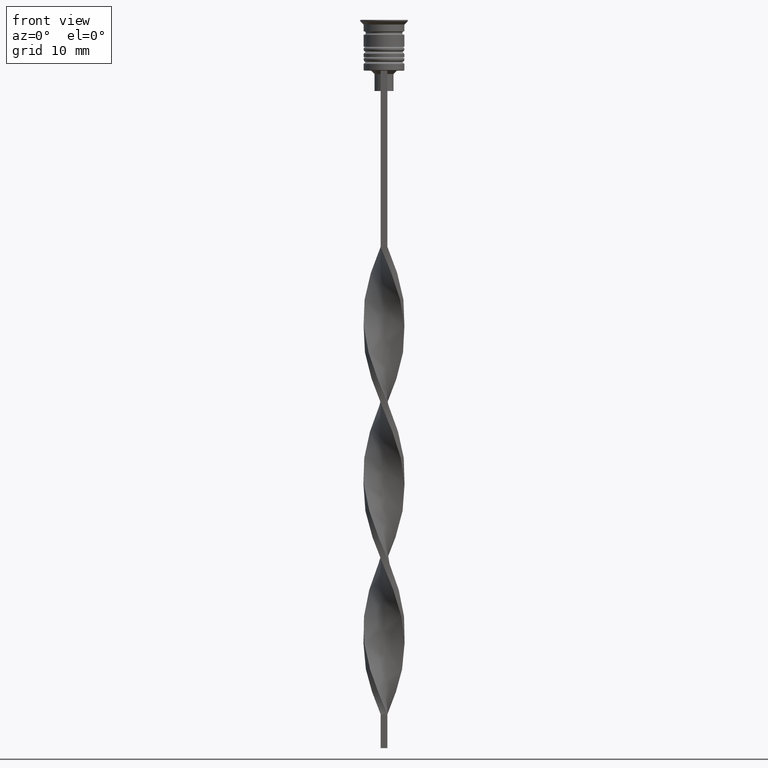
[diagram: clean part render]
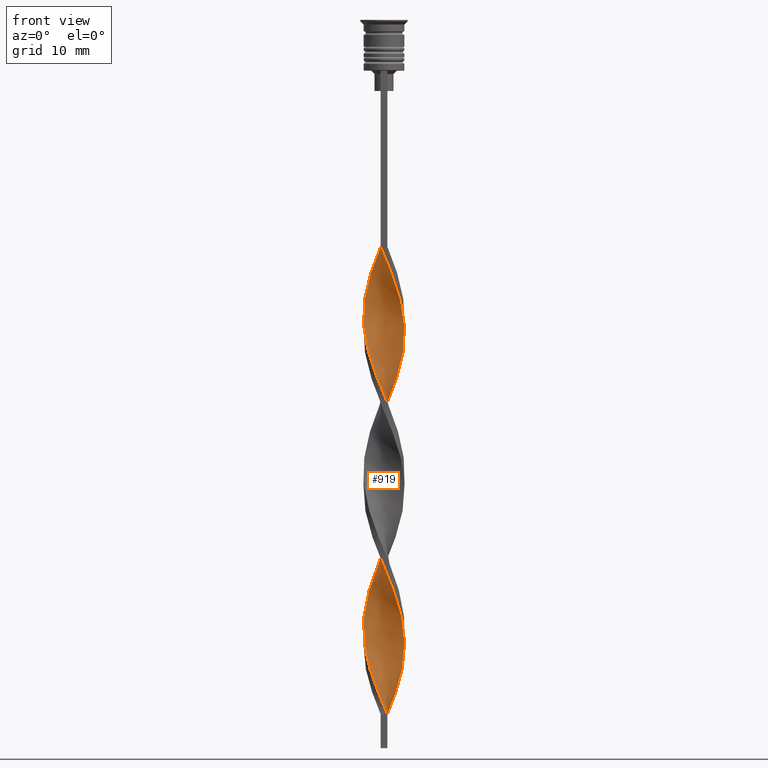
[diagram: same view with one face highlighted and labeled with its STEP entity id]
A machine part, front view. The second image highlights one B-rep face of the part: STEP entity #919.
In plain terms, the highlighted face is a freeform B-spline surface patch.
Its self-contained STEP definition (entity closure, byte-faithful):
#2 = CARTESIAN_POINT ( 'NONE',  ( -1.836897528957912584, -2.424006490937744118, -75.96153846153846700 ) ) ;
#5 = CARTESIAN_POINT ( 'NONE',  ( -0.1357340503332168102, 3.060710991611130805, -78.61538461538461320 ) ) ;
#19 = CARTESIAN_POINT ( 'NONE',  ( 1.928028413296781762, -2.380983398537113604, -85.69230769230770761 ) ) ;
#23 = CARTESIAN_POINT ( 'NONE',  ( -0.9514415033047011194, -2.888729662981513790, -52.96153846153845990 ) ) ;
#39 = CARTESIAN_POINT ( 'NONE',  ( -1.928028413296780652, 2.380983398537114049, -62.69230769230770051 ) ) ;
#42 = CARTESIAN_POINT ( 'NONE',  ( -0.2324760841496483210, -3.032483284421934933, -54.73076923076923350 ) ) ;
#55 = CARTESIAN_POINT ( 'NONE',  ( -0.5000000000000001110, 3.000000000000000000, -33.50000000000000000 ) ) ;
#58 = CARTESIAN_POINT ( 'NONE',  ( 2.363623348807935898, -1.913970915392906313, -61.80769230769231370 ) ) ;
#68 = CARTESIAN_POINT ( 'NONE',  ( 2.363623348807935898, -1.913970915392906313, -61.80769230769231370 ) ) ;
#81 = CARTESIAN_POINT ( 'NONE',  ( 0.2324760841496471830, -3.032483284421934933, -35.26923076923077360 ) ) ;
#88 = CARTESIAN_POINT ( 'NONE',  ( 2.131225204431204556, 2.200966749995605820, -98.07692307692308020 ) ) ;
#93 = CARTESIAN_POINT ( 'NONE',  ( 0.4999999999999997780, -3.000000000000000000, -102.5000000000000142 ) ) ;
#104 = CARTESIAN_POINT ( 'NONE',  ( 2.813682533735953673, 1.212256617197149833, -69.76923076923077360 ) ) ;
#113 = CARTESIAN_POINT ( 'NONE',  ( 2.596021493184669016, 1.626975080790204364, -50.30769230769231370 ) ) ;
#119 = CARTESIAN_POINT ( 'NONE',  ( -0.8642659496667818297, 2.939289008388869640, -34.38461538461538680 ) ) ;
#143 = CARTESIAN_POINT ( 'NONE',  ( -2.131225204431204112, 2.200966749995606264, -83.92307692307693401 ) ) ;
#151 = CARTESIAN_POINT ( 'NONE',  ( 2.441810035334000428, -1.850388947743478063, -87.46153846153849543 ) ) ;
#155 = CARTESIAN_POINT ( 'NONE',  ( -2.363623348807935898, 1.913970915392905869, -84.80769230769232081 ) ) ;
#163 = CARTESIAN_POINT ( 'NONE',  ( -2.596021493184669904, -1.626975080790202810, -73.30769230769232081 ) ) ;
#166 = CARTESIAN_POINT ( 'NONE',  ( -0.5000000000000001110, 3.000000000000000000, -79.50000000000001421 ) ) ;
#174 = CARTESIAN_POINT ( 'NONE',  ( -2.441810035333999540, 1.850388947743479395, -64.46153846153845279 ) ) ;
#181 = CARTESIAN_POINT ( 'NONE',  ( -1.836897528957910586, 2.424006490937745451, -83.03846153846154721 ) ) ;
#193 = CARTESIAN_POINT ( 'NONE',  ( 2.813682533735953228, -1.212256617197151165, -89.23076923076924061 ) ) ;
#197 = CARTESIAN_POINT ( 'NONE',  ( 1.928028413296783983, 2.380983398537111828, -73.30769230769232081 ) ) ;
#209 = CARTESIAN_POINT ( 'NONE',  ( 1.542569853484617948, 2.647046231879884193, -53.84615384615384670 ) ) ;
#233 = CARTESIAN_POINT ( 'NONE',  ( 2.596021493184669016, 1.626975080790204142, -50.30769230769232081 ) ) ;
#239 = CARTESIAN_POINT ( 'NONE',  ( 0.4999999999999997780, -3.000000000000000000, -56.50000000000000711 ) ) ;
#256 = CARTESIAN_POINT ( 'NONE',  ( 0.2324760841496471830, -3.032483284421934933, -81.26923076923077360 ) ) ;
#260 = CARTESIAN_POINT ( 'NONE',  ( 0.9514415033047027848, 2.888729662981513346, -75.96153846153846700 ) ) ;
#273 = CARTESIAN_POINT ( 'NONE',  ( 2.917858282166500228, -0.8579644778149968509, -44.11538461538462030 ) ) ;
#277 = CARTESIAN_POINT ( 'NONE',  ( 1.542569853484615949, -2.647046231879885525, -59.15384615384616041 ) ) ;
#289 = CARTESIAN_POINT ( 'NONE',  ( 2.982351171577512616, 0.5963065397848988924, -47.65384615384616041 ) ) ;
#293 = CARTESIAN_POINT ( 'NONE',  ( -2.813682533735953228, -1.212256617197150943, -46.76923076923077360 ) ) ;
#310 = CARTESIAN_POINT ( 'NONE',  ( 3.038394962421823386, -0.1347443962830584541, -45.88461538461538680 ) ) ;
#313 = CARTESIAN_POINT ( 'NONE',  ( -2.441810035334000428, -1.850388947743477619, -48.53846153846154721 ) ) ;
#328 = CARTESIAN_POINT ( 'NONE',  ( 2.909946448908425687, 0.9584295337030729334, -94.53846153846153300 ) ) ;
#332 = CARTESIAN_POINT ( 'NONE',  ( -2.184919224315391428, -2.115686173140295168, -95.42307692307693401 ) ) ;
#344 = CARTESIAN_POINT ( 'NONE',  ( 2.441810035334001761, 1.850388947743476509, -71.53846153846154721 ) ) ;
#345 = DIRECTION ( 'NONE',  ( 0.000000000000000000, 1.000000000000000000, 0.000000000000000000 ) ) ;
#356 = CARTESIAN_POINT ( 'NONE',  ( 2.982351171577512616, 0.5963065397848988924, -47.65384615384616041 ) ) ;
#365 = CARTESIAN_POINT ( 'NONE',  ( 2.982351171577512616, -0.5963065397849001137, -65.34615384615385381 ) ) ;
#376 = CARTESIAN_POINT ( 'NONE',  ( 1.302196787976888093, -2.773203748730288520, -37.92307692307692690 ) ) ;
#381 = CARTESIAN_POINT ( 'NONE',  ( 2.627746284534976606, -1.531322782470315058, -88.34615384615385381 ) ) ;
#383 = CARTESIAN_POINT ( 'NONE',  ( -3.038394962421823831, -0.1347443962830574271, -90.11538461538462741 ) ) ;
#391 = CARTESIAN_POINT ( 'NONE',  ( 1.615112600636834594, -2.577093573633701062, -38.80769230769230660 ) ) ;
#395 = CARTESIAN_POINT ( 'NONE',  ( 1.542569853484615949, -2.647046231879885525, -59.15384615384616041 ) ) ;
#409 = CARTESIAN_POINT ( 'NONE',  ( 2.184919224315390984, -2.115686173140296056, -40.57692307692308020 ) ) ;
#414 = CARTESIAN_POINT ( 'NONE',  ( -2.131225204431204112, 2.200966749995606264, -83.92307692307691980 ) ) ;
#426 = CARTESIAN_POINT ( 'NONE',  ( 2.596021493184669016, 1.626975080790204364, -96.30769230769232081 ) ) ;
#430 = CARTESIAN_POINT ( 'NONE',  ( 0.6006862186325140351, 3.004255577232739949, -76.84615384615386802 ) ) ;
#438 = CARTESIAN_POINT ( 'NONE',  ( -1.203417901575701832, -2.793167620134376250, -77.73076923076924061 ) ) ;
#441 = CARTESIAN_POINT ( 'NONE',  ( -2.917858282166500672, -0.8579644778149958517, -91.88461538461540101 ) ) ;
#454 = CARTESIAN_POINT ( 'NONE',  ( -1.928028413296780652, 2.380983398537114493, -62.69230769230770051 ) ) ;
#475 = CARTESIAN_POINT ( 'NONE',  ( 0.5000000000000004441, 3.000000000000000000, -102.5000000000000142 ) ) ;
#488 = CARTESIAN_POINT ( 'NONE',  ( -2.131225204431204556, -2.200966749995605820, -75.07692307692308020 ) ) ;
#498 = CARTESIAN_POINT ( 'NONE',  ( -0.9514415033047003423, 2.888729662981513790, -60.03846153846154010 ) ) ;
#503 = CARTESIAN_POINT ( 'NONE',  ( 3.022034030597048559, 0.5036723384328409825, -68.00000000000000000 ) ) ;
#519 = CARTESIAN_POINT ( 'NONE',  ( -2.363623348807936786, -1.913970915392904315, -74.19230769230769340 ) ) ;
#523 = CARTESIAN_POINT ( 'NONE',  ( 1.928028413296783983, 2.380983398537111828, -73.30769230769232081 ) ) ;
#542 = CARTESIAN_POINT ( 'NONE',  ( -1.615112600636835705, -2.577093573633700174, -51.19230769230769340 ) ) ;
#555 = CARTESIAN_POINT ( 'NONE',  ( -0.6006862186325113706, 3.004255577232740393, -59.15384615384616041 ) ) ;
#560 = CARTESIAN_POINT ( 'NONE',  ( -1.542569853484617060, 2.647046231879885081, -36.15384615384615330 ) ) ;
#561 = ORIENTED_EDGE ( 'NONE', *, *, #603, .T. ) ;
#572 = CARTESIAN_POINT ( 'NONE',  ( 3.022034030597048559, -0.5036723384328417596, -45.00000000000000711 ) ) ;
#578 = CARTESIAN_POINT ( 'NONE',  ( 1.836897528957910586, -2.424006490937745451, -60.03846153846154010 ) ) ;
#594 = CARTESIAN_POINT ( 'NONE',  ( -2.441810035334000428, -1.850388947743477397, -48.53846153846154010 ) ) ;
#603 = EDGE_CURVE ( 'NONE', #2707, #821, #1584, .T. ) ;
#608 = CARTESIAN_POINT ( 'NONE',  ( 0.8642659496667812746, -2.939289008388869640, -57.38461538461538680 ) ) ;
#612 = CARTESIAN_POINT ( 'NONE',  ( -0.8642659496667818297, 2.939289008388869640, -80.38461538461538680 ) ) ;
#620 = CARTESIAN_POINT ( 'NONE',  ( 3.038394962421823386, -0.1347443962830584541, -45.88461538461538680 ) ) ;
#627 = CARTESIAN_POINT ( 'NONE',  ( 0.4999999999999997780, -3.000000000000000000, -56.50000000000000711 ) ) ;
#646 = CARTESIAN_POINT ( 'NONE',  ( -2.752983971046547129, 1.292702307246639482, -40.57692307692308020 ) ) ;
#651 = CARTESIAN_POINT ( 'NONE',  ( 0.5000000000000004441, 3.000000000000000000, -102.5000000000000142 ) ) ;
#659 = EDGE_CURVE ( 'NONE', #931, #821, #666, .T. ) ;
#661 = CARTESIAN_POINT ( 'NONE',  ( 3.022034030597048559, -0.5036723384328417596, -91.00000000000001421 ) ) ;
#666 = B_SPLINE_CURVE_WITH_KNOTS ( 'NONE', 3,
 ( #651, #3301, #1165, #93 ),
 .UNSPECIFIED., .F., .F.,
 ( 4, 4 ),
 ( 0.000000000000000000, 1.000000000000000000 ),
 .UNSPECIFIED. ) ;
#672 = CARTESIAN_POINT ( 'NONE',  ( -0.1357340503332185033, -3.060710991611130360, -34.38461538461538680 ) ) ;
#684 = CARTESIAN_POINT ( 'NONE',  ( -1.836897528957912584, -2.424006490937744118, -75.96153846153846700 ) ) ;
#717 = CARTESIAN_POINT ( 'NONE',  ( 1.615112600636834594, -2.577093573633701062, -84.80769230769232081 ) ) ;
#732 = CARTESIAN_POINT ( 'NONE',  ( 2.909946448908426131, 0.9584295337030729334, -94.53846153846154721 ) ) ;
#737 = CARTESIAN_POINT ( 'NONE',  ( -2.596021493184668572, 1.626975080790205475, -85.69230769230770761 ) ) ;
#750 = CARTESIAN_POINT ( 'NONE',  ( -1.615112600636834150, 2.577093573633701062, -61.80769230769231370 ) ) ;
#758 = CARTESIAN_POINT ( 'NONE',  ( -2.131225204431204556, -2.200966749995605820, -75.07692307692308020 ) ) ;
#776 = CARTESIAN_POINT ( 'NONE',  ( -2.441810035333999540, 1.850388947743479173, -64.46153846153845279 ) ) ;
#779 = CARTESIAN_POINT ( 'NONE',  ( 0.8642659496667811636, -2.939289008388869640, -57.38461538461538680 ) ) ;
#795 = CARTESIAN_POINT ( 'NONE',  ( -1.203417901575701832, -2.793167620134376250, -77.73076923076924061 ) ) ;
#800 = CARTESIAN_POINT ( 'NONE',  ( -2.131225204431204112, 2.200966749995606264, -37.92307692307692690 ) ) ;
#816 = CARTESIAN_POINT ( 'NONE',  ( 3.054755894246598658, 0.2341835458667255176, -46.76923076923076650 ) ) ;
#820 = CARTESIAN_POINT ( 'NONE',  ( -0.5000000000000001110, 3.000000000000000000, -33.50000000000000000 ) ) ;
#821 = VERTEX_POINT ( 'NONE', #2608 ) ;
#832 = CARTESIAN_POINT ( 'NONE',  ( 1.928028413296781762, -2.380983398537113604, -39.69230769230769340 ) ) ;
#849 = CARTESIAN_POINT ( 'NONE',  ( -2.131225204431204112, 2.200966749995606264, -37.92307692307692690 ) ) ;
#854 = CARTESIAN_POINT ( 'NONE',  ( 3.038394962421823831, 0.1347443962830564002, -67.11538461538461320 ) ) ;
#863 = VECTOR ( 'NONE', #345, 1000.000000000000000 ) ;
#870 = CARTESIAN_POINT ( 'NONE',  ( -2.813682533735953228, -1.212256617197150943, -46.76923076923076650 ) ) ;
#874 = CARTESIAN_POINT ( 'NONE',  ( -0.5000000000000001110, 3.000000000000000000, -79.50000000000001421 ) ) ;
#884 = EDGE_LOOP ( 'NONE', ( #1939, #561, #1990, #1443 ) ) ;
#887 = CARTESIAN_POINT ( 'NONE',  ( -2.982351171577512172, 0.5963065397848998916, -42.34615384615385381 ) ) ;
#896 = CARTESIAN_POINT ( 'NONE',  ( 2.131225204431204556, 2.200966749995605820, -52.07692307692308020 ) ) ;
#901 = CARTESIAN_POINT ( 'NONE',  ( -0.6006862186325138131, -3.004255577232739949, -53.84615384615384670 ) ) ;
#919 = ADVANCED_FACE ( 'NONE', ( #3208 ), #2477, .T. ) ;
#922 = CARTESIAN_POINT ( 'NONE',  ( 3.054755894246598658, 0.2341835458667255176, -92.76923076923075939 ) ) ;
#931 = VERTEX_POINT ( 'NONE', #1479 ) ;
#942 = CARTESIAN_POINT ( 'NONE',  ( 0.4999999999999997780, -3.000000000000000000, -102.5000000000000142 ) ) ;
#950 = CARTESIAN_POINT ( 'NONE',  ( -1.302196787976887871, 2.773203748730288964, -60.92307692307692690 ) ) ;
#964 = CARTESIAN_POINT ( 'NONE',  ( 0.2324760841496471830, -3.032483284421934933, -81.26923076923077360 ) ) ;
#970 = CARTESIAN_POINT ( 'NONE',  ( -1.302196787976888537, -2.773203748730288076, -98.07692307692308020 ) ) ;
#982 = CARTESIAN_POINT ( 'NONE',  ( -0.2324760841496461561, 3.032483284421934933, -58.26923076923077360 ) ) ;
#986 = CARTESIAN_POINT ( 'NONE',  ( 0.2324760841496499864, 3.032483284421934489, -77.73076923076924061 ) ) ;
#995 = CARTESIAN_POINT ( 'NONE',  ( 1.302196787976888093, -2.773203748730288520, -83.92307692307693401 ) ) ;
#999 = CARTESIAN_POINT ( 'NONE',  ( -1.928028413296782206, -2.380983398537113160, -96.30769230769232081 ) ) ;
#1008 = CARTESIAN_POINT ( 'NONE',  ( -2.813682533735953228, 1.212256617197151165, -66.23076923076922640 ) ) ;
#1019 = CARTESIAN_POINT ( 'NONE',  ( 2.363623348807936786, 1.913970915392904759, -51.19230769230769340 ) ) ;
#1039 = CARTESIAN_POINT ( 'NONE',  ( -2.982351171577512172, 0.5963065397848998916, -42.34615384615385381 ) ) ;
#1051 = CARTESIAN_POINT ( 'NONE',  ( 0.6006862186325125919, -3.004255577232739949, -82.15384615384617462 ) ) ;
#1071 = CARTESIAN_POINT ( 'NONE',  ( 2.909946448908425687, 0.9584295337030729334, -48.53846153846154010 ) ) ;
#1076 = CARTESIAN_POINT ( 'NONE',  ( 2.752983971046547129, -1.292702307246639482, -63.57692307692308731 ) ) ;
#1091 = CARTESIAN_POINT ( 'NONE',  ( 0.5000000000000004441, 3.000000000000000000, -56.50000000000000711 ) ) ;
#1106 = CARTESIAN_POINT ( 'NONE',  ( 1.836897528957910586, -2.424006490937745451, -60.03846153846154010 ) ) ;
#1109 = CARTESIAN_POINT ( 'NONE',  ( 2.596021493184667683, -1.626975080790206141, -62.69230769230770051 ) ) ;
#1122 = CARTESIAN_POINT ( 'NONE',  ( 2.596021493184667683, -1.626975080790206141, -62.69230769230770051 ) ) ;
#1124 = LINE ( 'NONE', #2176, #863 ) ;
#1128 = CARTESIAN_POINT ( 'NONE',  ( -1.615112600636835705, -2.577093573633700174, -97.19230769230770761 ) ) ;
#1138 = CARTESIAN_POINT ( 'NONE',  ( 2.813682533735953228, -1.212256617197151165, -43.23076923076923350 ) ) ;
#1145 = CARTESIAN_POINT ( 'NONE',  ( 1.542569853484618170, 2.647046231879884193, -99.84615384615385381 ) ) ;
#1160 = CARTESIAN_POINT ( 'NONE',  ( 2.627746284534977050, 1.531322782470314392, -70.65384615384616041 ) ) ;
#1165 = CARTESIAN_POINT ( 'NONE',  ( 0.5000000000000000000, -1.000000000000000000, -102.5000000000000142 ) ) ;
#1175 = CARTESIAN_POINT ( 'NONE',  ( 1.203417901575698501, -2.793167620134377582, -58.26923076923077360 ) ) ;
#1179 = CARTESIAN_POINT ( 'NONE',  ( -3.022034030597048559, -0.5036723384328413156, -91.00000000000001421 ) ) ;
#1198 = CARTESIAN_POINT ( 'NONE',  ( -1.542569853484617060, 2.647046231879885081, -82.15384615384617462 ) ) ;
#1203 = CARTESIAN_POINT ( 'NONE',  ( -1.203417901575699389, 2.793167620134377582, -81.26923076923077360 ) ) ;
#1210 = CARTESIAN_POINT ( 'NONE',  ( 2.627746284534976606, -1.531322782470315058, -88.34615384615385381 ) ) ;
#1222 = CARTESIAN_POINT ( 'NONE',  ( 0.9514415033047003423, -2.888729662981513790, -83.03846153846154721 ) ) ;
#1238 = CARTESIAN_POINT ( 'NONE',  ( -2.184919224315390984, 2.115686173140296056, -63.57692307692308731 ) ) ;
#1244 = CARTESIAN_POINT ( 'NONE',  ( 0.1357340503332171988, -3.060710991611130360, -101.6153846153846132 ) ) ;
#1256 = CARTESIAN_POINT ( 'NONE',  ( 2.917858282166500228, -0.8579644778149968509, -90.11538461538462741 ) ) ;
#1260 = CARTESIAN_POINT ( 'NONE',  ( -2.813682533735953228, -1.212256617197150943, -92.76923076923075939 ) ) ;
#1271 = CARTESIAN_POINT ( 'NONE',  ( 1.203417901575700499, 2.793167620134376694, -54.73076923076923350 ) ) ;
#1283 =( BOUNDED_CURVE ( )  B_SPLINE_CURVE ( 2, ( #2539, #672, #81, #1977, #2746, #376, #391, #1439, #409, #1945, #3042, #1138, #2211, #3004, #620, #1472, #356, #2489, #2226, #113, #3292, #896, #3387, #209, #1271, #3402, #3138, #3372, #982, #2278, #2043, #950, #750, #454, #1238, #174, #2338, #1008, #2072, #2584, #3340, #2306, #2011, #3104, #1811, #163, #2878, #488, #684, #2324, #438, #1548, #3069, #1775, #964, #2842, #1222, #995, #717, #1501, #1516, #151, #1210, #193, #1256, #2565, #2057, #1745, #3118, #732, #2815, #426, #1490, #1760, #2554, #2291, #1792, #2860, #475 ),
 .UNSPECIFIED., .F., .T. ) 
 B_SPLINE_CURVE_WITH_KNOTS ( ( 3, 2, 2, 2, 2, 2, 2, 2, 2, 2, 2, 2, 2, 2, 2, 2, 2, 2, 2, 2, 2, 2, 2, 2, 2, 2, 2, 2, 2, 2, 2, 2, 2, 2, 2, 2, 2, 2, 2, 3 ),
 ( 0.000000000000000000, 0.01923076923076923184, 0.03846153846153846367, 0.05769230769230768857, 0.07692307692307692735, 0.09615384615384615918, 0.1153846153846153771, 0.1346153846153846090, 0.1538461538461538547, 0.1730769230769230449, 0.1923076923076923184, 0.2115384615384615363, 0.2307692307692307543, 0.2500000000000000000, 0.2692307692307692180, 0.2884615384615384359, 0.3076923076923077094, 0.3269230769230769273, 0.3461538461538460898, 0.3653846153846153633, 0.3846153846153846367, 0.4038461538461539102, 0.4230769230769230727, 0.4423076923076922906, 0.4615384615384615086, 0.4807692307692307820, 0.5000000000000000000, 0.5192307692307692735, 0.5384615384615384359, 0.5576923076923077094, 0.5769230769230768718, 0.5961538461538461453, 0.6153846153846154188, 0.6346153846153845812, 0.6538461538461538547, 0.6730769230769230171, 0.6923076923076921796, 0.7115384615384615641, 0.7307692307692307265, 0.7500000000000000000 ),
 .UNSPECIFIED. ) 
 CURVE ( )  GEOMETRIC_REPRESENTATION_ITEM ( )  RATIONAL_B_SPLINE_CURVE ( ( 1.000000000000000000, 0.9927088740980539727, 1.000000000000000000, 0.9927088740980539727, 1.000000000000000000, 0.9927088740980539727, 1.000000000000000000, 0.9927088740980539727, 1.000000000000000000, 0.9927088740980539727, 1.000000000000000000, 0.9927088740980539727, 1.000000000000000000, 0.9927088740980539727, 1.000000000000000000, 0.9927088740980539727, 1.000000000000000000, 0.9927088740980539727, 1.000000000000000000, 0.9927088740980539727, 1.000000000000000000, 0.9927088740980539727, 1.000000000000000000, 0.9927088740980539727, 1.000000000000000000, 0.9927088740980539727, 1.000000000000000000, 0.9927088740980539727, 1.000000000000000000, 0.9927088740980539727, 1.000000000000000000, 0.9927088740980539727, 1.000000000000000000, 0.9927088740980539727, 1.000000000000000000, 0.9927088740980539727, 1.000000000000000000, 0.9927088740980539727, 1.000000000000000000, 0.9927088740980539727, 1.000000000000000000, 0.9927088740980539727, 1.000000000000000000, 0.9927088740980539727, 1.000000000000000000, 0.9927088740980539727, 1.000000000000000000, 0.9927088740980539727, 1.000000000000000000, 0.9927088740980539727, 1.000000000000000000, 0.9927088740980539727, 1.000000000000000000, 0.9927088740980539727, 1.000000000000000000, 0.9927088740980539727, 1.000000000000000000, 0.9927088740980539727, 1.000000000000000000, 0.9927088740980539727, 1.000000000000000000, 0.9927088740980539727, 1.000000000000000000, 0.9927088740980539727, 1.000000000000000000, 0.9927088740980539727, 1.000000000000000000, 0.9927088740980539727, 1.000000000000000000, 0.9927088740980539727, 1.000000000000000000, 0.9927088740980539727, 1.000000000000000000, 0.9927088740980539727, 1.000000000000000000, 0.9927088740980539727, 1.000000000000000000, 0.9927088740980539727, 1.000000000000000000 ) ) 
 REPRESENTATION_ITEM ( '' )  );
#1301 = CARTESIAN_POINT ( 'NONE',  ( 1.302196787976887871, -2.773203748730288520, -37.92307692307692690 ) ) ;
#1306 = CARTESIAN_POINT ( 'NONE',  ( -2.917858282166500672, -0.8579644778149958517, -45.88461538461538680 ) ) ;
#1319 = CARTESIAN_POINT ( 'NONE',  ( 2.441810035334000428, -1.850388947743477841, -41.46153846153846700 ) ) ;
#1323 = CARTESIAN_POINT ( 'NONE',  ( 0.6006862186325140351, 3.004255577232739949, -76.84615384615386802 ) ) ;
#1338 = CARTESIAN_POINT ( 'NONE',  ( 0.1357340503332191695, 3.060710991611130360, -57.38461538461538680 ) ) ;
#1342 = CARTESIAN_POINT ( 'NONE',  ( 2.627746284534977050, 1.531322782470314392, -70.65384615384616041 ) ) ;
#1358 = CARTESIAN_POINT ( 'NONE',  ( 1.836897528957911030, 2.424006490937744562, -52.96153846153845990 ) ) ;
#1363 = CARTESIAN_POINT ( 'NONE',  ( -1.928028413296782206, -2.380983398537113160, -50.30769230769231370 ) ) ;
#1378 = CARTESIAN_POINT ( 'NONE',  ( -3.054755894246599102, -0.2341835458667243519, -69.76923076923077360 ) ) ;
#1380 = CARTESIAN_POINT ( 'NONE',  ( 2.131225204431203668, -2.200966749995606708, -60.92307692307692690 ) ) ;
#1393 = CARTESIAN_POINT ( 'NONE',  ( 2.982351171577512616, 0.5963065397848988924, -93.65384615384617462 ) ) ;
#1410 = CARTESIAN_POINT ( 'NONE',  ( 2.184919224315392317, 2.115686173140294724, -72.42307692307691980 ) ) ;
#1429 = CARTESIAN_POINT ( 'NONE',  ( 0.1357340503332171988, -3.060710991611130360, -55.61538461538462741 ) ) ;
#1433 = CARTESIAN_POINT ( 'NONE',  ( -2.917858282166500672, -0.8579644778149958517, -91.88461538461540101 ) ) ;
#1439 = CARTESIAN_POINT ( 'NONE',  ( 1.928028413296781762, -2.380983398537114049, -39.69230769230769340 ) ) ;
#1443 = ORIENTED_EDGE ( 'NONE', *, *, #2523, .F. ) ;
#1444 = CARTESIAN_POINT ( 'NONE',  ( 0.8642659496667829400, 2.939289008388869640, -101.6153846153846132 ) ) ;
#1447 = CARTESIAN_POINT ( 'NONE',  ( -0.9514415033047011194, -2.888729662981513790, -98.96153846153848122 ) ) ;
#1460 = CARTESIAN_POINT ( 'NONE',  ( 2.813682533735953228, -1.212256617197151165, -89.23076923076922640 ) ) ;
#1464 = CARTESIAN_POINT ( 'NONE',  ( -0.6006862186325138131, -3.004255577232739949, -99.84615384615386802 ) ) ;
#1472 = CARTESIAN_POINT ( 'NONE',  ( 3.054755894246598658, 0.2341835458667255176, -46.76923076923077360 ) ) ;
#1479 = CARTESIAN_POINT ( 'NONE',  ( 0.5000000000000004441, 3.000000000000000000, -102.5000000000000142 ) ) ;
#1490 = CARTESIAN_POINT ( 'NONE',  ( 2.363623348807936786, 1.913970915392904759, -97.19230769230770761 ) ) ;
#1493 = CARTESIAN_POINT ( 'NONE',  ( -0.6006862186325138131, -3.004255577232739949, -99.84615384615385381 ) ) ;
#1501 = CARTESIAN_POINT ( 'NONE',  ( 1.928028413296781762, -2.380983398537114049, -85.69230769230770761 ) ) ;
#1504 = CARTESIAN_POINT ( 'NONE',  ( 1.302196787976888759, 2.773203748730288076, -75.07692307692308020 ) ) ;
#1516 = CARTESIAN_POINT ( 'NONE',  ( 2.184919224315390984, -2.115686173140296056, -86.57692307692308020 ) ) ;
#1523 = CARTESIAN_POINT ( 'NONE',  ( -0.1357340503332168102, 3.060710991611130805, -78.61538461538461320 ) ) ;
#1548 = CARTESIAN_POINT ( 'NONE',  ( -0.8642659496667834951, -2.939289008388869195, -78.61538461538461320 ) ) ;
#1557 = CARTESIAN_POINT ( 'NONE',  ( -0.2324760841496461561, 3.032483284421934933, -58.26923076923077360 ) ) ;
#1561 = CARTESIAN_POINT ( 'NONE',  ( 2.813682533735953673, 1.212256617197149833, -69.76923076923077360 ) ) ;
#1579 = CARTESIAN_POINT ( 'NONE',  ( -1.542569853484618392, -2.647046231879884193, -76.84615384615386802 ) ) ;
#1584 =( BOUNDED_CURVE ( )  B_SPLINE_CURVE ( 2, ( #820, #3436, #2443, #560, #2406, #800, #2929, #1641, #2685, #3229, #1039, #3245, #2706, #2105, #1306, #293, #1865, #313, #3168, #1363, #542, #1604, #23, #2428, #42, #2653, #239, #779, #1921, #277, #578, #1380, #58, #1109, #1076, #1841, #2179, #2374, #854, #503, #1621, #1561, #1342, #2905, #1885, #523, #1585, #2948, #260, #1323, #2388, #5, #874, #612, #1203, #2457, #3318, #143, #2220, #2271, #3271, #1691, #2513, #2759, #383, #1179, #1433, #3333, #2497, #1938, #332, #2789, #1128, #3287, #1447, #1464, #2235, #2530, #942 ),
 .UNSPECIFIED., .F., .T. ) 
 B_SPLINE_CURVE_WITH_KNOTS ( ( 3, 2, 2, 2, 2, 2, 2, 2, 2, 2, 2, 2, 2, 2, 2, 2, 2, 2, 2, 2, 2, 2, 2, 2, 2, 2, 2, 2, 2, 2, 2, 2, 2, 2, 2, 2, 2, 2, 2, 3 ),
 ( 0.000000000000000000, 0.01923076923076923184, 0.03846153846153846367, 0.05769230769230768857, 0.07692307692307692735, 0.09615384615384615918, 0.1153846153846153771, 0.1346153846153846090, 0.1538461538461538547, 0.1730769230769230449, 0.1923076923076923184, 0.2115384615384615363, 0.2307692307692307543, 0.2500000000000000000, 0.2692307692307692180, 0.2884615384615384359, 0.3076923076923077094, 0.3269230769230769273, 0.3461538461538460898, 0.3653846153846153633, 0.3846153846153846367, 0.4038461538461539102, 0.4230769230769230727, 0.4423076923076922906, 0.4615384615384615086, 0.4807692307692307820, 0.5000000000000000000, 0.5192307692307692735, 0.5384615384615384359, 0.5576923076923077094, 0.5769230769230768718, 0.5961538461538461453, 0.6153846153846154188, 0.6346153846153845812, 0.6538461538461538547, 0.6730769230769230171, 0.6923076923076921796, 0.7115384615384615641, 0.7307692307692307265, 0.7500000000000000000 ),
 .UNSPECIFIED. ) 
 CURVE ( )  GEOMETRIC_REPRESENTATION_ITEM ( )  RATIONAL_B_SPLINE_CURVE ( ( 1.000000000000000000, 0.9927088740980539727, 1.000000000000000000, 0.9927088740980539727, 1.000000000000000000, 0.9927088740980539727, 1.000000000000000000, 0.9927088740980539727, 1.000000000000000000, 0.9927088740980539727, 1.000000000000000000, 0.9927088740980539727, 1.000000000000000000, 0.9927088740980539727, 1.000000000000000000, 0.9927088740980539727, 1.000000000000000000, 0.9927088740980539727, 1.000000000000000000, 0.9927088740980539727, 1.000000000000000000, 0.9927088740980539727, 1.000000000000000000, 0.9927088740980539727, 1.000000000000000000, 0.9927088740980539727, 1.000000000000000000, 0.9927088740980539727, 1.000000000000000000, 0.9927088740980539727, 1.000000000000000000, 0.9927088740980539727, 1.000000000000000000, 0.9927088740980539727, 1.000000000000000000, 0.9927088740980539727, 1.000000000000000000, 0.9927088740980539727, 1.000000000000000000, 0.9927088740980539727, 1.000000000000000000, 0.9927088740980539727, 1.000000000000000000, 0.9927088740980539727, 1.000000000000000000, 0.9927088740980539727, 1.000000000000000000, 0.9927088740980539727, 1.000000000000000000, 0.9927088740980539727, 1.000000000000000000, 0.9927088740980539727, 1.000000000000000000, 0.9927088740980539727, 1.000000000000000000, 0.9927088740980539727, 1.000000000000000000, 0.9927088740980539727, 1.000000000000000000, 0.9927088740980539727, 1.000000000000000000, 0.9927088740980539727, 1.000000000000000000, 0.9927088740980539727, 1.000000000000000000, 0.9927088740980539727, 1.000000000000000000, 0.9927088740980539727, 1.000000000000000000, 0.9927088740980539727, 1.000000000000000000, 0.9927088740980539727, 1.000000000000000000, 0.9927088740980539727, 1.000000000000000000, 0.9927088740980539727, 1.000000000000000000, 0.9927088740980539727, 1.000000000000000000 ) ) 
 REPRESENTATION_ITEM ( '' )  );
#1585 = CARTESIAN_POINT ( 'NONE',  ( 1.615112600636836149, 2.577093573633699730, -74.19230769230769340 ) ) ;
#1600 = CARTESIAN_POINT ( 'NONE',  ( 0.9514415033047003423, -2.888729662981513790, -37.03846153846154010 ) ) ;
#1604 = CARTESIAN_POINT ( 'NONE',  ( -1.302196787976888537, -2.773203748730288076, -52.07692307692308020 ) ) ;
#1608 = CARTESIAN_POINT ( 'NONE',  ( -0.5000000000000001110, 3.000000000000000000, -33.50000000000000000 ) ) ;
#1616 = CARTESIAN_POINT ( 'NONE',  ( -0.5000000000000001110, -3.000000000000000000, -79.50000000000001421 ) ) ;
#1621 = CARTESIAN_POINT ( 'NONE',  ( 2.917858282166500672, 0.8579644778149940754, -68.88461538461538680 ) ) ;
#1636 = CARTESIAN_POINT ( 'NONE',  ( -3.022034030597048559, 0.5036723384328420927, -68.00000000000000000 ) ) ;
#1641 = CARTESIAN_POINT ( 'NONE',  ( -2.596021493184668572, 1.626975080790205697, -39.69230769230769340 ) ) ;
#1656 = CARTESIAN_POINT ( 'NONE',  ( -2.184919224315391428, -2.115686173140295168, -49.42307692307693401 ) ) ;
#1668 = CARTESIAN_POINT ( 'NONE',  ( 2.917858282166500672, 0.8579644778149940754, -68.88461538461538680 ) ) ;
#1685 = CARTESIAN_POINT ( 'NONE',  ( 2.909946448908424799, -0.9584295337030752648, -64.46153846153845279 ) ) ;
#1691 = CARTESIAN_POINT ( 'NONE',  ( -2.909946448908426131, 0.9584295337030733775, -87.46153846153849543 ) ) ;
#1706 = CARTESIAN_POINT ( 'NONE',  ( -3.038394962421823831, -0.1347443962830574271, -44.11538461538462030 ) ) ;
#1720 = CARTESIAN_POINT ( 'NONE',  ( 3.038394962421823386, -0.1347443962830584541, -91.88461538461540101 ) ) ;
#1745 = CARTESIAN_POINT ( 'NONE',  ( 3.054755894246598658, 0.2341835458667255176, -92.76923076923077360 ) ) ;
#1752 = CARTESIAN_POINT ( 'NONE',  ( -3.054755894246598658, 0.2341835458667258230, -89.23076923076922640 ) ) ;
#1760 = CARTESIAN_POINT ( 'NONE',  ( 2.131225204431204556, 2.200966749995605820, -98.07692307692309441 ) ) ;
#1775 = CARTESIAN_POINT ( 'NONE',  ( -0.1357340503332185033, -3.060710991611130360, -80.38461538461538680 ) ) ;
#1792 = CARTESIAN_POINT ( 'NONE',  ( 1.203417901575700499, 2.793167620134376694, -100.7307692307692406 ) ) ;
#1797 = CARTESIAN_POINT ( 'NONE',  ( -3.038394962421823831, -0.1347443962830574271, -90.11538461538462741 ) ) ;
#1811 = CARTESIAN_POINT ( 'NONE',  ( -2.752983971046547573, -1.292702307246638149, -72.42307692307691980 ) ) ;
#1819 = CARTESIAN_POINT ( 'NONE',  ( 1.615112600636834594, -2.577093573633701062, -38.80769230769230660 ) ) ;
#1837 = CARTESIAN_POINT ( 'NONE',  ( 0.8642659496667829400, 2.939289008388869640, -55.61538461538462741 ) ) ;
#1841 = CARTESIAN_POINT ( 'NONE',  ( 2.909946448908425243, -0.9584295337030751538, -64.46153846153845279 ) ) ;
#1860 = CARTESIAN_POINT ( 'NONE',  ( 1.615112600636834594, -2.577093573633701062, -84.80769230769232081 ) ) ;
#1865 = CARTESIAN_POINT ( 'NONE',  ( -2.627746284534977050, -1.531322782470313948, -47.65384615384616041 ) ) ;
#1881 = CARTESIAN_POINT ( 'NONE',  ( -0.5000000000000001110, -3.000000000000000000, -33.50000000000000000 ) ) ;
#1885 = CARTESIAN_POINT ( 'NONE',  ( 2.184919224315392317, 2.115686173140294724, -72.42307692307691980 ) ) ;
#1898 = CARTESIAN_POINT ( 'NONE',  ( -2.813682533735953228, 1.212256617197151165, -66.23076923076922640 ) ) ;
#1916 = CARTESIAN_POINT ( 'NONE',  ( 2.752983971046547573, 1.292702307246638815, -95.42307692307693401 ) ) ;
#1921 = CARTESIAN_POINT ( 'NONE',  ( 1.203417901575698501, -2.793167620134377582, -58.26923076923077360 ) ) ;
#1934 = CARTESIAN_POINT ( 'NONE',  ( 3.054755894246598658, -0.2341835458667256287, -66.23076923076922640 ) ) ;
#1938 = CARTESIAN_POINT ( 'NONE',  ( -2.441810035334000428, -1.850388947743477619, -94.53846153846154721 ) ) ;
#1939 = ORIENTED_EDGE ( 'NONE', *, *, #2153, .T. ) ;
#1945 = CARTESIAN_POINT ( 'NONE',  ( 2.441810035334000428, -1.850388947743478063, -41.46153846153846700 ) ) ;
#1950 = CARTESIAN_POINT ( 'NONE',  ( -0.2324760841496483210, -3.032483284421934933, -54.73076923076923350 ) ) ;
#1968 = CARTESIAN_POINT ( 'NONE',  ( 2.596021493184669016, 1.626975080790204142, -96.30769230769232081 ) ) ;
#1977 = CARTESIAN_POINT ( 'NONE',  ( 0.6006862186325125919, -3.004255577232739949, -36.15384615384615330 ) ) ;
#1982 = CARTESIAN_POINT ( 'NONE',  ( -1.836897528957910586, 2.424006490937745451, -37.03846153846154010 ) ) ;
#1990 = ORIENTED_EDGE ( 'NONE', *, *, #659, .F. ) ;
#1997 = CARTESIAN_POINT ( 'NONE',  ( -2.752983971046547129, 1.292702307246639482, -86.57692307692308020 ) ) ;
#2011 = CARTESIAN_POINT ( 'NONE',  ( -2.982351171577512616, -0.5963065397848993365, -70.65384615384616041 ) ) ;
#2043 = CARTESIAN_POINT ( 'NONE',  ( -0.9514415033047003423, 2.888729662981513790, -60.03846153846154010 ) ) ;
#2057 = CARTESIAN_POINT ( 'NONE',  ( 3.038394962421823386, -0.1347443962830584541, -91.88461538461540101 ) ) ;
#2072 = CARTESIAN_POINT ( 'NONE',  ( -2.917858282166500228, 0.8579644778149978501, -67.11538461538461320 ) ) ;
#2082 = CARTESIAN_POINT ( 'NONE',  ( 2.131225204431204556, 2.200966749995605820, -52.07692307692308020 ) ) ;
#2105 = CARTESIAN_POINT ( 'NONE',  ( -3.022034030597048559, -0.5036723384328413156, -45.00000000000000711 ) ) ;
#2117 = CARTESIAN_POINT ( 'NONE',  ( 0.9514415033047003423, -2.888729662981513790, -83.03846153846154721 ) ) ;
#2137 = CARTESIAN_POINT ( 'NONE',  ( -2.627746284534976162, 1.531322782470315280, -65.34615384615385381 ) ) ;
#2153 = EDGE_CURVE ( 'NONE', #2615, #2707, #1124, .T. ) ;
#2158 = CARTESIAN_POINT ( 'NONE',  ( -1.615112600636834150, 2.577093573633701062, -61.80769230769231370 ) ) ;
#2165 = CARTESIAN_POINT ( 'NONE',  ( -0.5000000000000001110, -3.000000000000000000, -33.50000000000000000 ) ) ;
#2175 = CARTESIAN_POINT ( 'NONE',  ( 1.203417901575700499, 2.793167620134376694, -100.7307692307692406 ) ) ;
#2176 = CARTESIAN_POINT ( 'NONE',  ( -0.5000000000000001110, -3.000000000000000000, -33.50000000000000000 ) ) ;
#2179 = CARTESIAN_POINT ( 'NONE',  ( 2.982351171577512616, -0.5963065397849001137, -65.34615384615385381 ) ) ;
#2195 = CARTESIAN_POINT ( 'NONE',  ( 2.363623348807936786, 1.913970915392904759, -97.19230769230770761 ) ) ;
#2211 = CARTESIAN_POINT ( 'NONE',  ( 2.917858282166500228, -0.8579644778149968509, -44.11538461538462030 ) ) ;
#2216 = CARTESIAN_POINT ( 'NONE',  ( -1.203417901575699389, 2.793167620134377582, -35.26923076923077360 ) ) ;
#2220 = CARTESIAN_POINT ( 'NONE',  ( -2.363623348807935898, 1.913970915392905869, -84.80769230769232081 ) ) ;
#2226 = CARTESIAN_POINT ( 'NONE',  ( 2.752983971046547573, 1.292702307246638815, -49.42307692307693401 ) ) ;
#2232 = CARTESIAN_POINT ( 'NONE',  ( 2.184919224315390984, -2.115686173140296056, -86.57692307692308020 ) ) ;
#2235 = CARTESIAN_POINT ( 'NONE',  ( -0.2324760841496483210, -3.032483284421934933, -100.7307692307692406 ) ) ;
#2247 = CARTESIAN_POINT ( 'NONE',  ( -1.542569853484617060, 2.647046231879885081, -36.15384615384615330 ) ) ;
#2267 = CARTESIAN_POINT ( 'NONE',  ( 0.9514415033047027848, 2.888729662981513346, -75.96153846153846700 ) ) ;
#2271 = CARTESIAN_POINT ( 'NONE',  ( -2.596021493184668572, 1.626975080790205697, -85.69230769230770761 ) ) ;
#2278 = CARTESIAN_POINT ( 'NONE',  ( -0.6006862186325113706, 3.004255577232740393, -59.15384615384616041 ) ) ;
#2291 = CARTESIAN_POINT ( 'NONE',  ( 1.542569853484617948, 2.647046231879884193, -99.84615384615386802 ) ) ;
#2306 = CARTESIAN_POINT ( 'NONE',  ( -3.054755894246599102, -0.2341835458667243242, -69.76923076923077360 ) ) ;
#2324 = CARTESIAN_POINT ( 'NONE',  ( -1.542569853484618170, -2.647046231879884193, -76.84615384615386802 ) ) ;
#2328 = CARTESIAN_POINT ( 'NONE',  ( -0.8642659496667818297, 2.939289008388869640, -80.38461538461538680 ) ) ;
#2338 = CARTESIAN_POINT ( 'NONE',  ( -2.627746284534976162, 1.531322782470315280, -65.34615384615385381 ) ) ;
#2370 = CARTESIAN_POINT ( 'NONE',  ( -1.302196787976887649, 2.773203748730288964, -60.92307692307691980 ) ) ;
#2374 = CARTESIAN_POINT ( 'NONE',  ( 3.054755894246598658, -0.2341835458667256287, -66.23076923076922640 ) ) ;
#2384 = CARTESIAN_POINT ( 'NONE',  ( 1.542569853484618170, 2.647046231879884193, -53.84615384615384670 ) ) ;
#2388 = CARTESIAN_POINT ( 'NONE',  ( 0.2324760841496499864, 3.032483284421934489, -77.73076923076924061 ) ) ;
#2402 = CARTESIAN_POINT ( 'NONE',  ( -2.917858282166500228, 0.8579644778149978501, -67.11538461538461320 ) ) ;
#2406 = CARTESIAN_POINT ( 'NONE',  ( -1.836897528957910586, 2.424006490937745451, -37.03846153846154010 ) ) ;
#2424 = CARTESIAN_POINT ( 'NONE',  ( 1.203417901575700499, 2.793167620134376694, -54.73076923076923350 ) ) ;
#2428 = CARTESIAN_POINT ( 'NONE',  ( -0.6006862186325138131, -3.004255577232739949, -53.84615384615384670 ) ) ;
#2440 = CARTESIAN_POINT ( 'NONE',  ( -2.909946448908426131, -0.9584295337030713791, -71.53846153846154721 ) ) ;
#2443 = CARTESIAN_POINT ( 'NONE',  ( -1.203417901575699389, 2.793167620134377582, -35.26923076923077360 ) ) ;
#2454 = CARTESIAN_POINT ( 'NONE',  ( 2.131225204431203668, -2.200966749995606708, -60.92307692307691980 ) ) ;
#2457 = CARTESIAN_POINT ( 'NONE',  ( -1.542569853484617060, 2.647046231879885081, -82.15384615384617462 ) ) ;
#2472 = CARTESIAN_POINT ( 'NONE',  ( 1.836897528957911030, 2.424006490937744562, -98.96153846153848122 ) ) ;
#2477 =( BOUNDED_SURFACE ( )  B_SPLINE_SURFACE ( 1, 2, ( 
 ( #1881, #2681, #2926, #2701, #1600, #1301, #1819, #832, #2627, #1319, #2944, #2960, #273, #572, #310, #816, #289, #1071, #2666, #233, #1019, #2082, #1358, #2384, #2424, #1837, #1091, #1338, #1557, #555, #498, #2370, #2158, #39, #3432, #776, #2137, #1898, #2402, #1636, #3165, #1378, #3226, #2440, #3149, #2901, #519, #758, #2, #1579, #795, #2650, #1616, #2885, #256, #1051, #2117, #3182, #1860, #19, #2232, #2753, #381, #1460, #3046, #661, #1720, #922, #1393, #328, #1916, #1968, #2195, #88, #2472, #1145, #2175, #1444, #3242 ),
 ( #55, #119, #2216, #2247, #1982, #849, #3283, #3314, #646, #3009, #887, #3029, #1706, #2508, #2771, #870, #2980, #594, #1656, #3298, #2735, #2786, #2717, #901, #1950, #1429, #627, #608, #1175, #395, #1106, #2454, #68, #1122, #3263, #1685, #365, #1934, #2494, #2993, #1668, #104, #1160, #344, #1410, #197, #2590, #1504, #2267, #430, #986, #1523, #166, #2328, #3095, #1198, #181, #414, #155, #737, #1997, #2845, #3122, #1752, #1797, #2802, #441, #1260, #3329, #2831, #3059, #999, #2569, #970, #2819, #1493, #3392, #1244, #3108 ) ),
 .UNSPECIFIED., .F., .F., .F. ) 
 B_SPLINE_SURFACE_WITH_KNOTS ( ( 2, 2 ),
 ( 3, 2, 2, 2, 2, 2, 2, 2, 2, 2, 2, 2, 2, 2, 2, 2, 2, 2, 2, 2, 2, 2, 2, 2, 2, 2, 2, 2, 2, 2, 2, 2, 2, 2, 2, 2, 2, 2, 2, 3 ),
 ( 0.000000000000000000, 1.000000000000000000 ),
 ( 0.000000000000000000, 0.01923076923076923184, 0.03846153846153846367, 0.05769230769230769551, 0.07692307692307692735, 0.09615384615384615918, 0.1153846153846153910, 0.1346153846153846090, 0.1538461538461538547, 0.1730769230769230727, 0.1923076923076923184, 0.2115384615384615363, 0.2307692307692307820, 0.2500000000000000000, 0.2692307692307692180, 0.2884615384615384359, 0.3076923076923077094, 0.3269230769230769273, 0.3461538461538461453, 0.3653846153846153633, 0.3846153846153846367, 0.4038461538461538547, 0.4230769230769230727, 0.4423076923076922906, 0.4615384615384615641, 0.4807692307692307820, 0.5000000000000000000, 0.5192307692307692735, 0.5384615384615384359, 0.5576923076923077094, 0.5769230769230768718, 0.5961538461538461453, 0.6153846153846154188, 0.6346153846153845812, 0.6538461538461538547, 0.6730769230769231282, 0.6923076923076922906, 0.7115384615384615641, 0.7307692307692307265, 0.7500000000000000000 ),
 .UNSPECIFIED. ) 
 GEOMETRIC_REPRESENTATION_ITEM ( )  RATIONAL_B_SPLINE_SURFACE ( (
 ( 1.000000000000000000, 0.9927088740980539727, 1.000000000000000000, 0.9927088740980539727, 1.000000000000000000, 0.9927088740980539727, 1.000000000000000000, 0.9927088740980539727, 1.000000000000000000, 0.9927088740980539727, 1.000000000000000000, 0.9927088740980539727, 1.000000000000000000, 0.9927088740980539727, 1.000000000000000000, 0.9927088740980539727, 1.000000000000000000, 0.9927088740980539727, 1.000000000000000000, 0.9927088740980539727, 1.000000000000000000, 0.9927088740980539727, 1.000000000000000000, 0.9927088740980539727, 1.000000000000000000, 0.9927088740980539727, 1.000000000000000000, 0.9927088740980539727, 1.000000000000000000, 0.9927088740980539727, 1.000000000000000000, 0.9927088740980539727, 1.000000000000000000, 0.9927088740980539727, 1.000000000000000000, 0.9927088740980539727, 1.000000000000000000, 0.9927088740980539727, 1.000000000000000000, 0.9927088740980539727, 1.000000000000000000, 0.9927088740980539727, 1.000000000000000000, 0.9927088740980539727, 1.000000000000000000, 0.9927088740980539727, 1.000000000000000000, 0.9927088740980539727, 1.000000000000000000, 0.9927088740980539727, 1.000000000000000000, 0.9927088740980539727, 1.000000000000000000, 0.9927088740980539727, 1.000000000000000000, 0.9927088740980539727, 1.000000000000000000, 0.9927088740980539727, 1.000000000000000000, 0.9927088740980539727, 1.000000000000000000, 0.9927088740980539727, 1.000000000000000000, 0.9927088740980539727, 1.000000000000000000, 0.9927088740980539727, 1.000000000000000000, 0.9927088740980539727, 1.000000000000000000, 0.9927088740980539727, 1.000000000000000000, 0.9927088740980539727, 1.000000000000000000, 0.9927088740980539727, 1.000000000000000000, 0.9927088740980539727, 1.000000000000000000, 0.9927088740980539727, 1.000000000000000000),
 ( 1.000000000000000000, 0.9927088740980539727, 1.000000000000000000, 0.9927088740980539727, 1.000000000000000000, 0.9927088740980539727, 1.000000000000000000, 0.9927088740980539727, 1.000000000000000000, 0.9927088740980539727, 1.000000000000000000, 0.9927088740980539727, 1.000000000000000000, 0.9927088740980539727, 1.000000000000000000, 0.9927088740980539727, 1.000000000000000000, 0.9927088740980539727, 1.000000000000000000, 0.9927088740980539727, 1.000000000000000000, 0.9927088740980539727, 1.000000000000000000, 0.9927088740980539727, 1.000000000000000000, 0.9927088740980539727, 1.000000000000000000, 0.9927088740980539727, 1.000000000000000000, 0.9927088740980539727, 1.000000000000000000, 0.9927088740980539727, 1.000000000000000000, 0.9927088740980539727, 1.000000000000000000, 0.9927088740980539727, 1.000000000000000000, 0.9927088740980539727, 1.000000000000000000, 0.9927088740980539727, 1.000000000000000000, 0.9927088740980539727, 1.000000000000000000, 0.9927088740980539727, 1.000000000000000000, 0.9927088740980539727, 1.000000000000000000, 0.9927088740980539727, 1.000000000000000000, 0.9927088740980539727, 1.000000000000000000, 0.9927088740980539727, 1.000000000000000000, 0.9927088740980539727, 1.000000000000000000, 0.9927088740980539727, 1.000000000000000000, 0.9927088740980539727, 1.000000000000000000, 0.9927088740980539727, 1.000000000000000000, 0.9927088740980539727, 1.000000000000000000, 0.9927088740980539727, 1.000000000000000000, 0.9927088740980539727, 1.000000000000000000, 0.9927088740980539727, 1.000000000000000000, 0.9927088740980539727, 1.000000000000000000, 0.9927088740980539727, 1.000000000000000000, 0.9927088740980539727, 1.000000000000000000, 0.9927088740980539727, 1.000000000000000000, 0.9927088740980539727, 1.000000000000000000) ) ) 
 REPRESENTATION_ITEM ( '' )  SURFACE ( )  );
#2489 = CARTESIAN_POINT ( 'NONE',  ( 2.909946448908426131, 0.9584295337030729334, -48.53846153846154721 ) ) ;
#2494 = CARTESIAN_POINT ( 'NONE',  ( 3.038394962421823831, 0.1347443962830564002, -67.11538461538461320 ) ) ;
#2497 = CARTESIAN_POINT ( 'NONE',  ( -2.627746284534977050, -1.531322782470313948, -93.65384615384617462 ) ) ;
#2508 = CARTESIAN_POINT ( 'NONE',  ( -3.022034030597048559, -0.5036723384328413156, -45.00000000000000711 ) ) ;
#2513 = CARTESIAN_POINT ( 'NONE',  ( -2.982351171577512172, 0.5963065397848998916, -88.34615384615385381 ) ) ;
#2523 = EDGE_CURVE ( 'NONE', #2615, #931, #1283, .T. ) ;
#2530 = CARTESIAN_POINT ( 'NONE',  ( 0.1357340503332171711, -3.060710991611130360, -101.6153846153846274 ) ) ;
#2539 = CARTESIAN_POINT ( 'NONE',  ( -0.5000000000000001110, -3.000000000000000000, -33.50000000000000000 ) ) ;
#2554 = CARTESIAN_POINT ( 'NONE',  ( 1.836897528957911030, 2.424006490937744562, -98.96153846153848122 ) ) ;
#2565 = CARTESIAN_POINT ( 'NONE',  ( 3.022034030597048559, -0.5036723384328417596, -91.00000000000001421 ) ) ;
#2569 = CARTESIAN_POINT ( 'NONE',  ( -1.615112600636835705, -2.577093573633700174, -97.19230769230770761 ) ) ;
#2584 = CARTESIAN_POINT ( 'NONE',  ( -3.022034030597048559, 0.5036723384328420927, -68.00000000000000000 ) ) ;
#2590 = CARTESIAN_POINT ( 'NONE',  ( 1.615112600636836149, 2.577093573633699730, -74.19230769230769340 ) ) ;
#2608 = CARTESIAN_POINT ( 'NONE',  ( 0.4999999999999997780, -3.000000000000000000, -102.5000000000000142 ) ) ;
#2615 = VERTEX_POINT ( 'NONE', #2165 ) ;
#2627 = CARTESIAN_POINT ( 'NONE',  ( 2.184919224315390984, -2.115686173140296056, -40.57692307692308020 ) ) ;
#2650 = CARTESIAN_POINT ( 'NONE',  ( -0.8642659496667833841, -2.939289008388869195, -78.61538461538461320 ) ) ;
#2653 = CARTESIAN_POINT ( 'NONE',  ( 0.1357340503332171711, -3.060710991611130360, -55.61538461538462741 ) ) ;
#2666 = CARTESIAN_POINT ( 'NONE',  ( 2.752983971046547573, 1.292702307246638815, -49.42307692307693401 ) ) ;
#2681 = CARTESIAN_POINT ( 'NONE',  ( -0.1357340503332185311, -3.060710991611130360, -34.38461538461538680 ) ) ;
#2685 = CARTESIAN_POINT ( 'NONE',  ( -2.752983971046547129, 1.292702307246639482, -40.57692307692308020 ) ) ;
#2701 = CARTESIAN_POINT ( 'NONE',  ( 0.6006862186325125919, -3.004255577232739949, -36.15384615384615330 ) ) ;
#2706 = CARTESIAN_POINT ( 'NONE',  ( -3.038394962421823831, -0.1347443962830574271, -44.11538461538462030 ) ) ;
#2707 = VERTEX_POINT ( 'NONE', #1608 ) ;
#2717 = CARTESIAN_POINT ( 'NONE',  ( -0.9514415033047011194, -2.888729662981513790, -52.96153846153845990 ) ) ;
#2735 = CARTESIAN_POINT ( 'NONE',  ( -1.615112600636835705, -2.577093573633700174, -51.19230769230769340 ) ) ;
#2746 = CARTESIAN_POINT ( 'NONE',  ( 0.9514415033047003423, -2.888729662981513790, -37.03846153846154010 ) ) ;
#2753 = CARTESIAN_POINT ( 'NONE',  ( 2.441810035334000428, -1.850388947743477841, -87.46153846153849543 ) ) ;
#2759 = CARTESIAN_POINT ( 'NONE',  ( -3.054755894246598658, 0.2341835458667258507, -89.23076923076924061 ) ) ;
#2771 = CARTESIAN_POINT ( 'NONE',  ( -2.917858282166500672, -0.8579644778149958517, -45.88461538461538680 ) ) ;
#2786 = CARTESIAN_POINT ( 'NONE',  ( -1.302196787976888537, -2.773203748730288076, -52.07692307692308020 ) ) ;
#2789 = CARTESIAN_POINT ( 'NONE',  ( -1.928028413296782206, -2.380983398537113160, -96.30769230769232081 ) ) ;
#2802 = CARTESIAN_POINT ( 'NONE',  ( -3.022034030597048559, -0.5036723384328413156, -91.00000000000001421 ) ) ;
#2815 = CARTESIAN_POINT ( 'NONE',  ( 2.752983971046547573, 1.292702307246638815, -95.42307692307693401 ) ) ;
#2819 = CARTESIAN_POINT ( 'NONE',  ( -0.9514415033047011194, -2.888729662981513790, -98.96153846153848122 ) ) ;
#2831 = CARTESIAN_POINT ( 'NONE',  ( -2.441810035334000428, -1.850388947743477397, -94.53846153846153300 ) ) ;
#2842 = CARTESIAN_POINT ( 'NONE',  ( 0.6006862186325125919, -3.004255577232739949, -82.15384615384617462 ) ) ;
#2845 = CARTESIAN_POINT ( 'NONE',  ( -2.909946448908425687, 0.9584295337030733775, -87.46153846153849543 ) ) ;
#2860 = CARTESIAN_POINT ( 'NONE',  ( 0.8642659496667830510, 2.939289008388869640, -101.6153846153846274 ) ) ;
#2878 = CARTESIAN_POINT ( 'NONE',  ( -2.363623348807936786, -1.913970915392904315, -74.19230769230769340 ) ) ;
#2885 = CARTESIAN_POINT ( 'NONE',  ( -0.1357340503332185311, -3.060710991611130360, -80.38461538461538680 ) ) ;
#2901 = CARTESIAN_POINT ( 'NONE',  ( -2.596021493184669904, -1.626975080790202810, -73.30769230769232081 ) ) ;
#2905 = CARTESIAN_POINT ( 'NONE',  ( 2.441810035334001761, 1.850388947743476509, -71.53846153846154721 ) ) ;
#2926 = CARTESIAN_POINT ( 'NONE',  ( 0.2324760841496471830, -3.032483284421934933, -35.26923076923077360 ) ) ;
#2929 = CARTESIAN_POINT ( 'NONE',  ( -2.363623348807935898, 1.913970915392905869, -38.80769230769230660 ) ) ;
#2944 = CARTESIAN_POINT ( 'NONE',  ( 2.627746284534976606, -1.531322782470315058, -42.34615384615385381 ) ) ;
#2948 = CARTESIAN_POINT ( 'NONE',  ( 1.302196787976888759, 2.773203748730288076, -75.07692307692308020 ) ) ;
#2960 = CARTESIAN_POINT ( 'NONE',  ( 2.813682533735953228, -1.212256617197151165, -43.23076923076922640 ) ) ;
#2980 = CARTESIAN_POINT ( 'NONE',  ( -2.627746284534977050, -1.531322782470313948, -47.65384615384616041 ) ) ;
#2993 = CARTESIAN_POINT ( 'NONE',  ( 3.022034030597048559, 0.5036723384328409825, -68.00000000000000000 ) ) ;
#3004 = CARTESIAN_POINT ( 'NONE',  ( 3.022034030597048559, -0.5036723384328417596, -45.00000000000000711 ) ) ;
#3009 = CARTESIAN_POINT ( 'NONE',  ( -2.909946448908425687, 0.9584295337030733775, -41.46153846153846700 ) ) ;
#3029 = CARTESIAN_POINT ( 'NONE',  ( -3.054755894246598658, 0.2341835458667258230, -43.23076923076922640 ) ) ;
#3042 = CARTESIAN_POINT ( 'NONE',  ( 2.627746284534976606, -1.531322782470315058, -42.34615384615385381 ) ) ;
#3046 = CARTESIAN_POINT ( 'NONE',  ( 2.917858282166500228, -0.8579644778149968509, -90.11538461538462741 ) ) ;
#3059 = CARTESIAN_POINT ( 'NONE',  ( -2.184919224315391428, -2.115686173140295168, -95.42307692307693401 ) ) ;
#3069 = CARTESIAN_POINT ( 'NONE',  ( -0.5000000000000001110, -3.000000000000000000, -79.50000000000001421 ) ) ;
#3095 = CARTESIAN_POINT ( 'NONE',  ( -1.203417901575699389, 2.793167620134377582, -81.26923076923077360 ) ) ;
#3104 = CARTESIAN_POINT ( 'NONE',  ( -2.909946448908426575, -0.9584295337030714901, -71.53846153846154721 ) ) ;
#3108 = CARTESIAN_POINT ( 'NONE',  ( 0.4999999999999997780, -3.000000000000000000, -102.5000000000000142 ) ) ;
#3118 = CARTESIAN_POINT ( 'NONE',  ( 2.982351171577512616, 0.5963065397848988924, -93.65384615384617462 ) ) ;
#3122 = CARTESIAN_POINT ( 'NONE',  ( -2.982351171577512172, 0.5963065397848998916, -88.34615384615385381 ) ) ;
#3138 = CARTESIAN_POINT ( 'NONE',  ( 0.5000000000000004441, 3.000000000000000000, -56.50000000000000711 ) ) ;
#3149 = CARTESIAN_POINT ( 'NONE',  ( -2.752983971046547573, -1.292702307246638149, -72.42307692307691980 ) ) ;
#3165 = CARTESIAN_POINT ( 'NONE',  ( -3.038394962421823386, 0.1347443962830601472, -68.88461538461538680 ) ) ;
#3168 = CARTESIAN_POINT ( 'NONE',  ( -2.184919224315391428, -2.115686173140295168, -49.42307692307693401 ) ) ;
#3182 = CARTESIAN_POINT ( 'NONE',  ( 1.302196787976887871, -2.773203748730288520, -83.92307692307691980 ) ) ;
#3208 = FACE_OUTER_BOUND ( 'NONE', #884, .T. ) ;
#3226 = CARTESIAN_POINT ( 'NONE',  ( -2.982351171577512616, -0.5963065397848993365, -70.65384615384616041 ) ) ;
#3229 = CARTESIAN_POINT ( 'NONE',  ( -2.909946448908426131, 0.9584295337030733775, -41.46153846153846700 ) ) ;
#3242 = CARTESIAN_POINT ( 'NONE',  ( 0.5000000000000004441, 3.000000000000000000, -102.5000000000000142 ) ) ;
#3245 = CARTESIAN_POINT ( 'NONE',  ( -3.054755894246598658, 0.2341835458667258507, -43.23076923076923350 ) ) ;
#3263 = CARTESIAN_POINT ( 'NONE',  ( 2.752983971046547129, -1.292702307246639482, -63.57692307692308731 ) ) ;
#3271 = CARTESIAN_POINT ( 'NONE',  ( -2.752983971046547129, 1.292702307246639482, -86.57692307692308020 ) ) ;
#3283 = CARTESIAN_POINT ( 'NONE',  ( -2.363623348807935898, 1.913970915392905869, -38.80769230769230660 ) ) ;
#3287 = CARTESIAN_POINT ( 'NONE',  ( -1.302196787976888537, -2.773203748730288076, -98.07692307692309441 ) ) ;
#3292 = CARTESIAN_POINT ( 'NONE',  ( 2.363623348807936786, 1.913970915392904759, -51.19230769230769340 ) ) ;
#3298 = CARTESIAN_POINT ( 'NONE',  ( -1.928028413296782206, -2.380983398537113160, -50.30769230769232081 ) ) ;
#3301 = CARTESIAN_POINT ( 'NONE',  ( 0.5000000000000002220, 1.000000000000000000, -102.5000000000000142 ) ) ;
#3314 = CARTESIAN_POINT ( 'NONE',  ( -2.596021493184668572, 1.626975080790205475, -39.69230769230769340 ) ) ;
#3318 = CARTESIAN_POINT ( 'NONE',  ( -1.836897528957910586, 2.424006490937745451, -83.03846153846154721 ) ) ;
#3329 = CARTESIAN_POINT ( 'NONE',  ( -2.627746284534977050, -1.531322782470313948, -93.65384615384617462 ) ) ;
#3333 = CARTESIAN_POINT ( 'NONE',  ( -2.813682533735953228, -1.212256617197150943, -92.76923076923077360 ) ) ;
#3340 = CARTESIAN_POINT ( 'NONE',  ( -3.038394962421823386, 0.1347443962830601472, -68.88461538461538680 ) ) ;
#3372 = CARTESIAN_POINT ( 'NONE',  ( 0.1357340503332191972, 3.060710991611130360, -57.38461538461538680 ) ) ;
#3387 = CARTESIAN_POINT ( 'NONE',  ( 1.836897528957911030, 2.424006490937744562, -52.96153846153845990 ) ) ;
#3392 = CARTESIAN_POINT ( 'NONE',  ( -0.2324760841496483210, -3.032483284421934933, -100.7307692307692406 ) ) ;
#3402 = CARTESIAN_POINT ( 'NONE',  ( 0.8642659496667830510, 2.939289008388869640, -55.61538461538462741 ) ) ;
#3432 = CARTESIAN_POINT ( 'NONE',  ( -2.184919224315390984, 2.115686173140296056, -63.57692307692308731 ) ) ;
#3436 = CARTESIAN_POINT ( 'NONE',  ( -0.8642659496667818297, 2.939289008388869640, -34.38461538461538680 ) ) ;